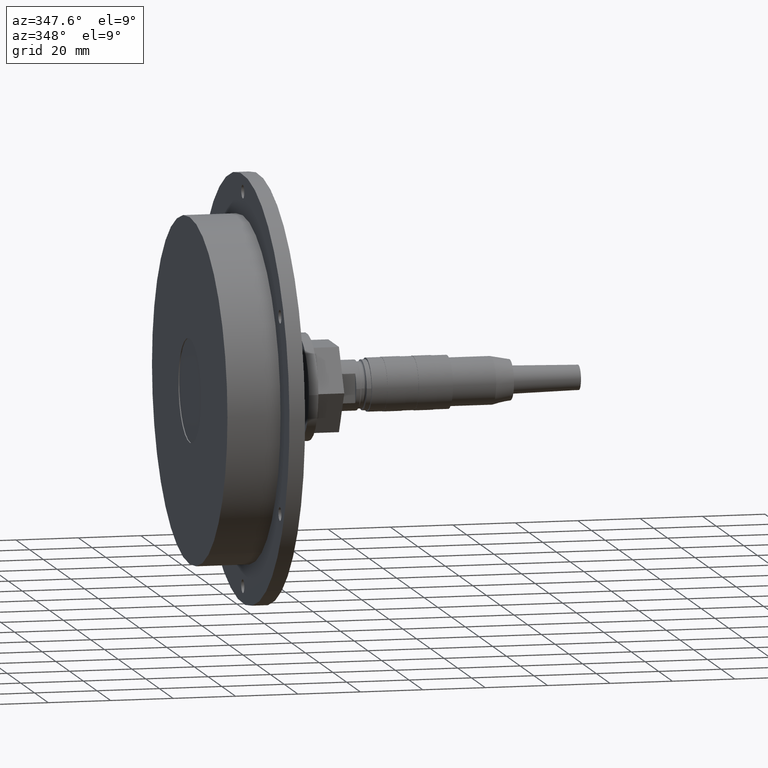
[diagram: clean part render]
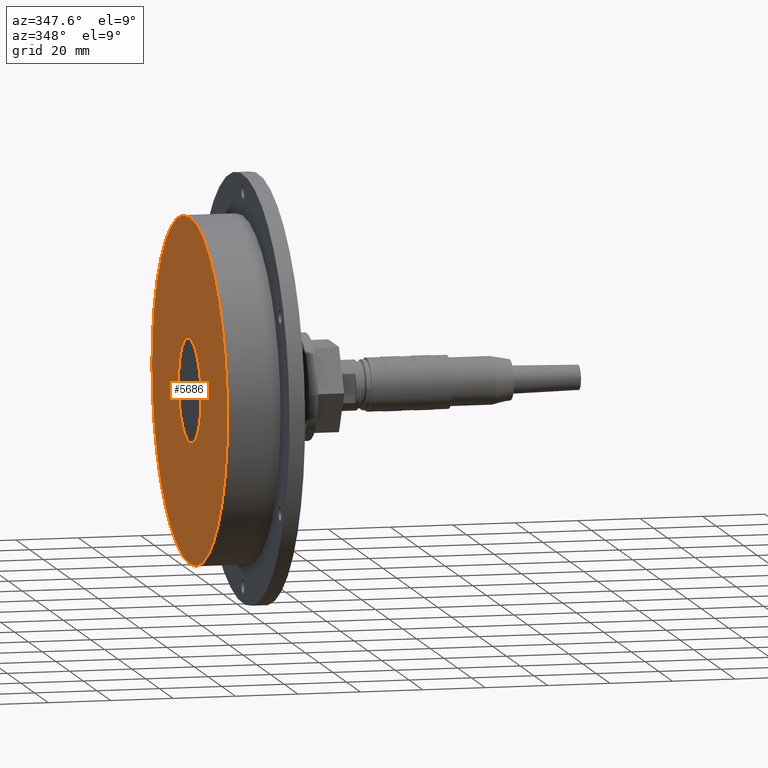
[diagram: same view with one face highlighted and labeled with its STEP entity id]
A machine part, auxiliary view. The second image highlights one B-rep face of the part: STEP entity #5686.
In plain terms, the highlighted planar face has unit normal (-1, 0, -0).
Its self-contained STEP definition (entity closure, byte-faithful):
#4646=CARTESIAN_POINT('',(-10.500000000000000,42.500000000000000,0.0));
#4647=VERTEX_POINT('',#4646);
#4663=CARTESIAN_POINT('',(-10.499999999999986,-67.500000000000000,-6.735335E-015));
#4664=VERTEX_POINT('',#4663);
#4671=CARTESIAN_POINT('',(-10.499999999999993,-12.500000000000000,0.0));
#4672=DIRECTION('',(1.0,0.0,0.0));
#4673=DIRECTION('',(0.0,1.0,0.0));
#4674=AXIS2_PLACEMENT_3D('',#4671,#4672,#4673);
#4675=CIRCLE('',#4674,55.0);
#4676=EDGE_CURVE('',#4664,#4647,#4675,.T.);
#4688=CARTESIAN_POINT('',(-10.500000000000000,4.0,0.0));
#4689=VERTEX_POINT('',#4688);
#4705=CARTESIAN_POINT('',(-10.499999999999996,-29.0,-2.020600E-015));
#4706=VERTEX_POINT('',#4705);
#4713=CARTESIAN_POINT('',(-10.499999999999998,-12.500000000000000,0.0));
#4714=DIRECTION('',(1.0,0.0,0.0));
#4715=DIRECTION('',(0.0,1.0,0.0));
#4716=AXIS2_PLACEMENT_3D('',#4713,#4714,#4715);
#4717=CIRCLE('',#4716,16.500000000000000);
#4718=EDGE_CURVE('',#4689,#4706,#4717,.T.);
#5655=CARTESIAN_POINT('',(-10.499999999999998,-12.500000000000000,0.0));
#5656=DIRECTION('',(1.0,0.0,0.0));
#5657=DIRECTION('',(0.0,1.0,0.0));
#5658=AXIS2_PLACEMENT_3D('',#5655,#5656,#5657);
#5659=CIRCLE('',#5658,16.500000000000000);
#5660=EDGE_CURVE('',#4706,#4689,#5659,.T.);
#5667=CARTESIAN_POINT('',(-10.500000000000000,23.250000000000000,0.0));
#5668=DIRECTION('',(-1.0,0.0,0.0));
#5669=DIRECTION('',(0.0,0.0,1.0));
#5670=AXIS2_PLACEMENT_3D('',#5667,#5668,#5669);
#5671=PLANE('',#5670);
#5672=CARTESIAN_POINT('',(-10.499999999999993,-12.500000000000000,0.0));
#5673=DIRECTION('',(1.0,0.0,0.0));
#5674=DIRECTION('',(0.0,1.0,0.0));
#5675=AXIS2_PLACEMENT_3D('',#5672,#5673,#5674);
#5676=CIRCLE('',#5675,55.0);
#5677=EDGE_CURVE('',#4647,#4664,#5676,.T.);
#5678=ORIENTED_EDGE('',*,*,#5677,.F.);
#5679=ORIENTED_EDGE('',*,*,#4676,.F.);
#5680=EDGE_LOOP('',(#5678,#5679));
#5681=FACE_OUTER_BOUND('',#5680,.T.);
#5682=ORIENTED_EDGE('',*,*,#4718,.T.);
#5683=ORIENTED_EDGE('',*,*,#5660,.T.);
#5684=EDGE_LOOP('',(#5682,#5683));
#5685=FACE_BOUND('',#5684,.T.);
#5686=ADVANCED_FACE('',(#5681,#5685),#5671,.T.);